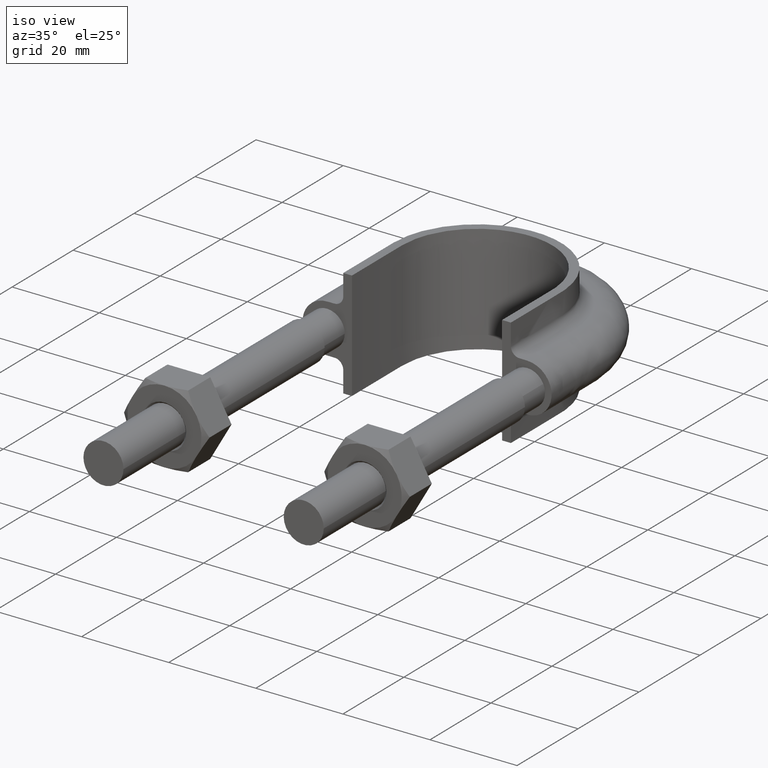
[diagram: clean part render]
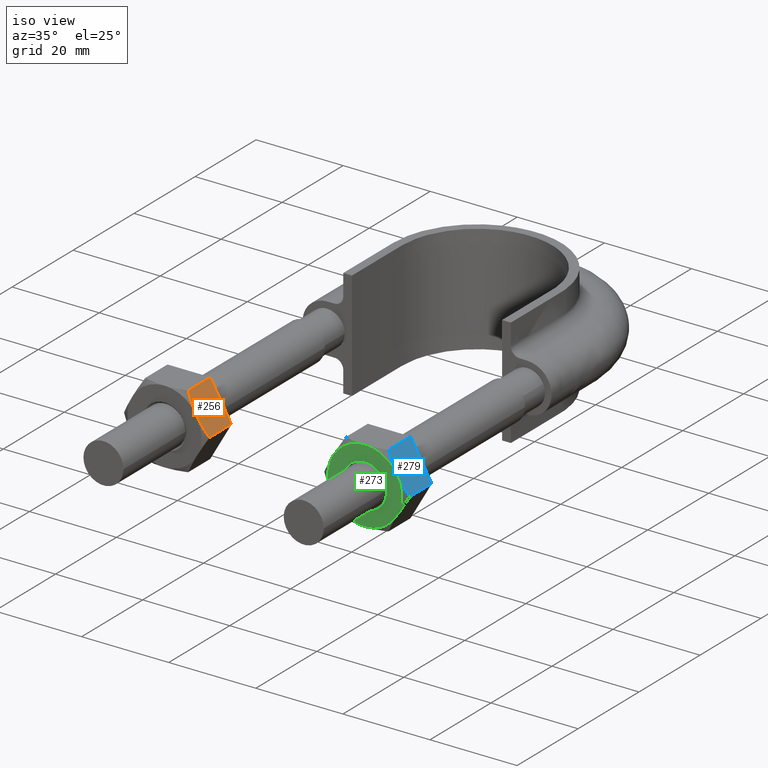
[diagram: same view with three faces highlighted in distinct colors, each labeled with its STEP entity id]
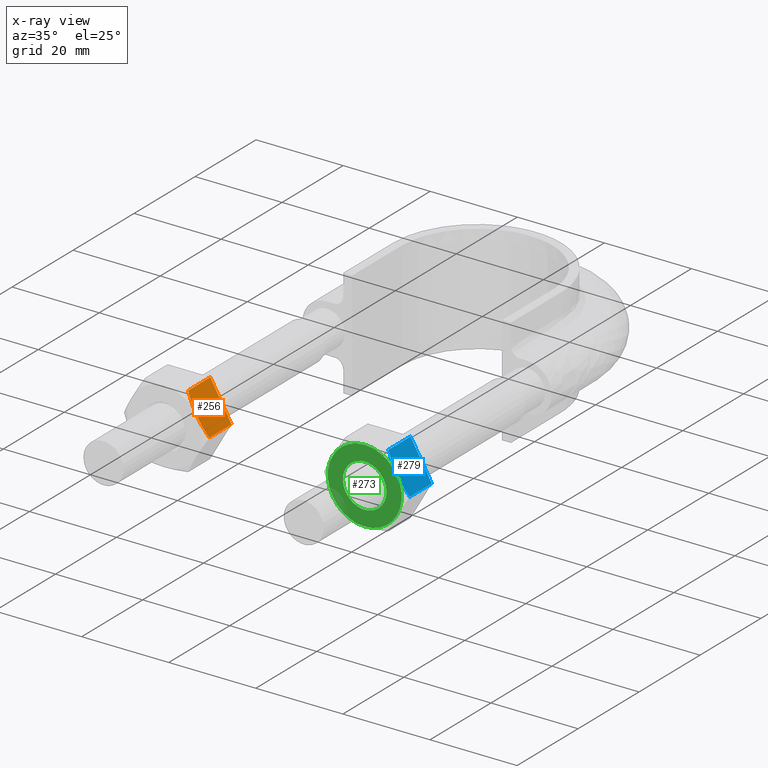
[diagram: x-ray of the same camera — body ghosted, the three highlighted faces saturated]
A machine part, iso view with three faces highlighted in distinct colors.
The next image is the same camera in x-ray (body ghosted, the three faces saturated) — at least one of them is partly hidden behind the body in this view.
Their STEP definitions:

[orange] entity #256 — the highlighted planar face has unit normal (-0.866, 0, -0.5).
#256 = ADVANCED_FACE( '', ( #382 ), #383, .F. );
#382 = FACE_OUTER_BOUND( '', #1379, .T. );
#383 = PLANE( '', #1380 );
#1379 = EDGE_LOOP( '', ( #1719, #1720, #1721, #1722, #1723 ) );
#1380 = AXIS2_PLACEMENT_3D( '', #1724, #1725, #1726 );
#1719 = ORIENTED_EDGE( '', *, *, #2085, .F. );
#1720 = ORIENTED_EDGE( '', *, *, #2052, .F. );
#1721 = ORIENTED_EDGE( '', *, *, #2086, .F. );
#1722 = ORIENTED_EDGE( '', *, *, #2069, .F. );
#1723 = ORIENTED_EDGE( '', *, *, #2080, .F. );
#1724 = CARTESIAN_POINT( '', ( -18.0925227118882, 28.0000000000000, 8.50000000000001 ) );
#1725 = DIRECTION( '', ( -0.866025403784439, 3.65183836637000E-016, -0.500000000000000 ) );
#1726 = DIRECTION( '', ( -2.44921270764475E-016, -1.00000000000000, -3.06151588455594E-016 ) );
#2052 = EDGE_CURVE( '', #2233, #2236, #2237, .T. );
#2069 = EDGE_CURVE( '', #2265, #2267, #2268, .T. );
#2080 = EDGE_CURVE( '', #2286, #2265, #2288, .T. );
#2085 = EDGE_CURVE( '', #2236, #2286, #2295, .T. );
#2086 = EDGE_CURVE( '', #2267, #2233, #2296, .F. );
#2233 = VERTEX_POINT( '', #2673 );
#2236 = VERTEX_POINT( '', #2676 );
#2237 = B_SPLINE_CURVE_WITH_KNOTS( '', 3, ( #2677, #2678, #2679, #2680, #2681, #2682 ), .UNSPECIFIED., .F., .F., ( 4, 2, 4 ), ( 0.0107224888714710, 0.0132032657403443, 0.0156840426092177 ), .UNSPECIFIED. );
#2265 = VERTEX_POINT( '', #2732 );
#2267 = VERTEX_POINT( '', #2734 );
#2268 = LINE( '', #2735, #2736 );
#2286 = VERTEX_POINT( '', #2758 );
#2288 = LINE( '', #2760, #2761 );
#2295 = B_SPLINE_CURVE_WITH_KNOTS( '', 3, ( #2781, #2782, #2783, #2784, #2785, #2786 ), .UNSPECIFIED., .F., .F., ( 4, 2, 4 ), ( 0.0156840426092177, 0.0181633795370703, 0.0206427164649230 ), .UNSPECIFIED. );
#2296 = LINE( '', #2787, #2788 );
#2673 = CARTESIAN_POINT( '', ( -13.2000343881808, 20.7505553499465, 0.0259616479013875 ) );
#2676 = CARTESIAN_POINT( '', ( -15.6387840678323, 20.0000000000000, 4.25000000000001 ) );
#2677 = CARTESIAN_POINT( '', ( -13.2000343881808, 20.7505553499465, 0.0259616479013872 ) );
#2678 = CARTESIAN_POINT( '', ( -13.5973471013617, 20.5222200930414, 0.714127453623761 ) );
#2679 = CARTESIAN_POINT( '', ( -13.9981827566703, 20.3336547117173, 1.40839517410335 ) );
#2680 = CARTESIAN_POINT( '', ( -14.8100934831092, 20.0721149177817, 2.81466580350569 ) );
#2681 = CARTESIAN_POINT( '', ( -15.2212446910265, 20.0000000000000, 3.52680058521175 ) );
#2682 = CARTESIAN_POINT( '', ( -15.6387840678323, 20.0000000000000, 4.25000000000001 ) );
#2732 = CARTESIAN_POINT( '', ( -18.0775337474837, 28.0000000000000, 8.47403835209863 ) );
#2734 = CARTESIAN_POINT( '', ( -13.2000343881808, 28.0000000000000, 0.0259616479013897 ) );
#2735 = CARTESIAN_POINT( '', ( -20.5387840678323, 28.0000000000000, 12.7370489570875 ) );
#2736 = VECTOR( '', #3119, 1000.00000000000 );
#2758 = CARTESIAN_POINT( '', ( -18.0775337474837, 20.7505553499465, 8.47403835209862 ) );
#2760 = CARTESIAN_POINT( '', ( -18.0775337474837, 28.0000000000000, 8.47403835209863 ) );
#2761 = VECTOR( '', #3142, 1000.00000000000 );
#2781 = CARTESIAN_POINT( '', ( -15.6387840678323, 20.0000000000000, 4.25000000000001 ) );
#2782 = CARTESIAN_POINT( '', ( -16.0560810882682, 20.0000000000000, 4.97277964124210 ) );
#2783 = CARTESIAN_POINT( '', ( -16.4683332044331, 20.0723104611263, 5.68682125196744 ) );
#2784 = CARTESIAN_POINT( '', ( -17.2801877793121, 20.3339943747733, 7.09299462401514 ) );
#2785 = CARTESIAN_POINT( '', ( -17.6807129739459, 20.5225028103093, 7.78672461083230 ) );
#2786 = CARTESIAN_POINT( '', ( -18.0775337474837, 20.7505553499465, 8.47403835209862 ) );
#2787 = CARTESIAN_POINT( '', ( -13.2000343881808, 28.0000000000000, 0.0259616479013897 ) );
#2788 = VECTOR( '', #3147, 1000.00000000000 );
#3119 = DIRECTION( '', ( 0.500000000000000, 1.42674417629266E-016, -0.866025403784439 ) );
#3142 = DIRECTION( '', ( 2.44921270764475E-016, 1.00000000000000, 3.06151588455594E-016 ) );
#3147 = DIRECTION( '', ( 2.44921270764475E-016, 1.00000000000000, 3.06151588455594E-016 ) );

[blue] entity #279 — the highlighted planar face has unit normal (-0.866, 0, -0.5).
#279 = ADVANCED_FACE( '', ( #433 ), #434, .F. );
#433 = FACE_OUTER_BOUND( '', #1430, .T. );
#434 = PLANE( '', #1431 );
#1430 = EDGE_LOOP( '', ( #1892, #1893, #1894, #1895, #1896 ) );
#1431 = AXIS2_PLACEMENT_3D( '', #1897, #1898, #1899 );
#1892 = ORIENTED_EDGE( '', *, *, #2137, .F. );
#1893 = ORIENTED_EDGE( '', *, *, #2104, .F. );
#1894 = ORIENTED_EDGE( '', *, *, #2138, .F. );
#1895 = ORIENTED_EDGE( '', *, *, #2121, .F. );
#1896 = ORIENTED_EDGE( '', *, *, #2132, .F. );
#1897 = CARTESIAN_POINT( '', ( 27.9074772881118, 28.0000000000000, 8.50000000000001 ) );
#1898 = DIRECTION( '', ( -0.866025403784439, 3.65183836637000E-016, -0.500000000000000 ) );
#1899 = DIRECTION( '', ( -2.44921270764475E-016, -1.00000000000000, -3.06151588455594E-016 ) );
#2104 = EDGE_CURVE( '', #2319, #2322, #2323, .T. );
#2121 = EDGE_CURVE( '', #2351, #2353, #2354, .T. );
#2132 = EDGE_CURVE( '', #2372, #2351, #2374, .T. );
#2137 = EDGE_CURVE( '', #2322, #2372, #2381, .T. );
#2138 = EDGE_CURVE( '', #2353, #2319, #2382, .F. );
#2319 = VERTEX_POINT( '', #2845 );
#2322 = VERTEX_POINT( '', #2848 );
#2323 = B_SPLINE_CURVE_WITH_KNOTS( '', 3, ( #2849, #2850, #2851, #2852, #2853, #2854 ), .UNSPECIFIED., .F., .F., ( 4, 2, 4 ), ( 0.0107224888714710, 0.0132032657403443, 0.0156840426092177 ), .UNSPECIFIED. );
#2351 = VERTEX_POINT( '', #2904 );
#2353 = VERTEX_POINT( '', #2906 );
#2354 = LINE( '', #2907, #2908 );
#2372 = VERTEX_POINT( '', #2930 );
#2374 = LINE( '', #2932, #2933 );
#2381 = B_SPLINE_CURVE_WITH_KNOTS( '', 3, ( #2953, #2954, #2955, #2956, #2957, #2958 ), .UNSPECIFIED., .F., .F., ( 4, 2, 4 ), ( 0.0156840426092177, 0.0181633795370703, 0.0206427164649230 ), .UNSPECIFIED. );
#2382 = LINE( '', #2959, #2960 );
#2845 = CARTESIAN_POINT( '', ( 32.7999656118192, 20.7505553499465, 0.0259616479013875 ) );
#2848 = CARTESIAN_POINT( '', ( 30.3612159321677, 20.0000000000000, 4.25000000000001 ) );
#2849 = CARTESIAN_POINT( '', ( 32.7999656118192, 20.7505553499465, 0.0259616479013871 ) );
#2850 = CARTESIAN_POINT( '', ( 32.4026528986383, 20.5222200930414, 0.714127453623761 ) );
#2851 = CARTESIAN_POINT( '', ( 32.0018172433297, 20.3336547117173, 1.40839517410335 ) );
#2852 = CARTESIAN_POINT( '', ( 31.1899065168908, 20.0721149177817, 2.81466580350569 ) );
#2853 = CARTESIAN_POINT( '', ( 30.7787553089735, 20.0000000000000, 3.52680058521175 ) );
#2854 = CARTESIAN_POINT( '', ( 30.3612159321677, 20.0000000000000, 4.25000000000001 ) );
#2904 = CARTESIAN_POINT( '', ( 27.9224662525163, 28.0000000000000, 8.47403835209863 ) );
#2906 = CARTESIAN_POINT( '', ( 32.7999656118192, 28.0000000000000, 0.0259616479013897 ) );
#2907 = CARTESIAN_POINT( '', ( 25.4612159321677, 28.0000000000000, 12.7370489570875 ) );
#2908 = VECTOR( '', #3203, 1000.00000000000 );
#2930 = CARTESIAN_POINT( '', ( 27.9224662525163, 20.7505553499465, 8.47403835209862 ) );
#2932 = CARTESIAN_POINT( '', ( 27.9224662525163, 28.0000000000000, 8.47403835209863 ) );
#2933 = VECTOR( '', #3226, 1000.00000000000 );
#2953 = CARTESIAN_POINT( '', ( 30.3612159321677, 20.0000000000000, 4.25000000000001 ) );
#2954 = CARTESIAN_POINT( '', ( 29.9439189117318, 20.0000000000000, 4.97277964124210 ) );
#2955 = CARTESIAN_POINT( '', ( 29.5316667955670, 20.0723104611263, 5.68682125196744 ) );
#2956 = CARTESIAN_POINT( '', ( 28.7198122206880, 20.3339943747733, 7.09299462401514 ) );
#2957 = CARTESIAN_POINT( '', ( 28.3192870260541, 20.5225028103093, 7.78672461083230 ) );
#2958 = CARTESIAN_POINT( '', ( 27.9224662525163, 20.7505553499465, 8.47403835209862 ) );
#2959 = CARTESIAN_POINT( '', ( 32.7999656118192, 28.0000000000000, 0.0259616479013897 ) );
#2960 = VECTOR( '', #3231, 1000.00000000000 );
#3203 = DIRECTION( '', ( 0.500000000000000, 1.42674417629266E-016, -0.866025403784439 ) );
#3226 = DIRECTION( '', ( 2.44921270764475E-016, 1.00000000000000, 3.06151588455594E-016 ) );
#3231 = DIRECTION( '', ( 2.44921270764475E-016, 1.00000000000000, 3.06151588455594E-016 ) );

[green] entity #273 — the highlighted planar face has unit normal (0, 1, 0).
#273 = ADVANCED_FACE( '', ( #419, #420 ), #421, .F. );
#419 = FACE_OUTER_BOUND( '', #1416, .T. );
#420 = FACE_BOUND( '', #1417, .T. );
#421 = PLANE( '', #1418 );
#1416 = EDGE_LOOP( '', ( #1837, #1838, #1839, #1840, #1841, #1842 ) );
#1417 = EDGE_LOOP( '', ( #1843 ) );
#1418 = AXIS2_PLACEMENT_3D( '', #1844, #1845, #1846 );
#1837 = ORIENTED_EDGE( '', *, *, #2107, .F. );
#1838 = ORIENTED_EDGE( '', *, *, #2108, .F. );
#1839 = ORIENTED_EDGE( '', *, *, #2109, .F. );
#1840 = ORIENTED_EDGE( '', *, *, #2110, .F. );
#1841 = ORIENTED_EDGE( '', *, *, #2105, .F. );
#1842 = ORIENTED_EDGE( '', *, *, #2111, .F. );
#1843 = ORIENTED_EDGE( '', *, *, #2112, .T. );
#1844 = CARTESIAN_POINT( '', ( 23.0000000000000, 20.0000000000000, 6.58164928807326E-015 ) );
#1845 = DIRECTION( '', ( 2.44921270764475E-016, 1.00000000000000, 3.06151588455594E-016 ) );
#1846 = DIRECTION( '', ( -0.866025403784439, 3.65183836637000E-016, -0.500000000000000 ) );
#2105 = EDGE_CURVE( '', #2322, #2324, #2325, .T. );
#2107 = EDGE_CURVE( '', #2327, #2328, #2329, .T. );
#2108 = EDGE_CURVE( '', #2330, #2327, #2331, .T. );
#2109 = EDGE_CURVE( '', #2332, #2330, #2333, .T. );
#2110 = EDGE_CURVE( '', #2324, #2332, #2334, .T. );
#2111 = EDGE_CURVE( '', #2328, #2322, #2335, .T. );
#2112 = EDGE_CURVE( '', #2336, #2336, #2337, .T. );
#2322 = VERTEX_POINT( '', #2848 );
#2324 = VERTEX_POINT( '', #2855 );
#2325 = CIRCLE( '', #2856, 8.50000000000000 );
#2327 = VERTEX_POINT( '', #2865 );
#2328 = VERTEX_POINT( '', #2866 );
#2329 = CIRCLE( '', #2867, 8.50000000000000 );
#2330 = VERTEX_POINT( '', #2868 );
#2331 = CIRCLE( '', #2869, 8.50000000000000 );
#2332 = VERTEX_POINT( '', #2870 );
#2333 = CIRCLE( '', #2871, 8.50000000000000 );
#2334 = CIRCLE( '', #2872, 8.50000000000000 );
#2335 = CIRCLE( '', #2873, 8.50000000000000 );
#2336 = VERTEX_POINT( '', #2874 );
#2337 = CIRCLE( '', #2875, 5.00000000000000 );
#2848 = CARTESIAN_POINT( '', ( 30.3612159321677, 20.0000000000000, 4.25000000000001 ) );
#2855 = CARTESIAN_POINT( '', ( 30.3612159321677, 20.0000000000000, -4.24999999999999 ) );
#2856 = AXIS2_PLACEMENT_3D( '', #3170, #3171, #3172 );
#2865 = CARTESIAN_POINT( '', ( 15.6387840678323, 20.0000000000000, 4.25000000000001 ) );
#2866 = CARTESIAN_POINT( '', ( 23.0000000000000, 20.0000000000000, 8.50000000000001 ) );
#2867 = AXIS2_PLACEMENT_3D( '', #3173, #3174, #3175 );
#2868 = CARTESIAN_POINT( '', ( 15.6387840678323, 20.0000000000000, -4.24999999999999 ) );
#2869 = AXIS2_PLACEMENT_3D( '', #3176, #3177, #3178 );
#2870 = CARTESIAN_POINT( '', ( 23.0000000000000, 20.0000000000000, -8.49999999999999 ) );
#2871 = AXIS2_PLACEMENT_3D( '', #3179, #3180, #3181 );
#2872 = AXIS2_PLACEMENT_3D( '', #3182, #3183, #3184 );
#2873 = AXIS2_PLACEMENT_3D( '', #3185, #3186, #3187 );
#2874 = CARTESIAN_POINT( '', ( 18.6698729810778, 20.0000000000000, -2.49999999999999 ) );
#2875 = AXIS2_PLACEMENT_3D( '', #3188, #3189, #3190 );
#3170 = CARTESIAN_POINT( '', ( 23.0000000000000, 20.0000000000000, 6.58164928807326E-015 ) );
#3171 = DIRECTION( '', ( 2.44921270764475E-016, 1.00000000000000, 3.06151588455594E-016 ) );
#3172 = DIRECTION( '', ( -0.866025403784439, 3.65183836637000E-016, -0.500000000000000 ) );
#3173 = CARTESIAN_POINT( '', ( 23.0000000000000, 20.0000000000000, 6.58164928807326E-015 ) );
#3174 = DIRECTION( '', ( 2.44921270764475E-016, 1.00000000000000, 3.06151588455594E-016 ) );
#3175 = DIRECTION( '', ( -0.866025403784439, 3.65183836637000E-016, -0.500000000000000 ) );
#3176 = CARTESIAN_POINT( '', ( 23.0000000000000, 20.0000000000000, 6.58164928807326E-015 ) );
#3177 = DIRECTION( '', ( 2.44921270764475E-016, 1.00000000000000, 3.06151588455594E-016 ) );
#3178 = DIRECTION( '', ( -0.866025403784439, 3.65183836637000E-016, -0.500000000000000 ) );
#3179 = CARTESIAN_POINT( '', ( 23.0000000000000, 20.0000000000000, 6.58164928807326E-015 ) );
#3180 = DIRECTION( '', ( 2.44921270764475E-016, 1.00000000000000, 3.06151588455594E-016 ) );
#3181 = DIRECTION( '', ( -0.866025403784439, 3.65183836637000E-016, -0.500000000000000 ) );
#3182 = CARTESIAN_POINT( '', ( 23.0000000000000, 20.0000000000000, 6.58164928807326E-015 ) );
#3183 = DIRECTION( '', ( 2.44921270764475E-016, 1.00000000000000, 3.06151588455594E-016 ) );
#3184 = DIRECTION( '', ( -0.866025403784439, 3.65183836637000E-016, -0.500000000000000 ) );
#3185 = CARTESIAN_POINT( '', ( 23.0000000000000, 20.0000000000000, 6.58164928807326E-015 ) );
#3186 = DIRECTION( '', ( 2.44921270764475E-016, 1.00000000000000, 3.06151588455594E-016 ) );
#3187 = DIRECTION( '', ( -0.866025403784439, 3.65183836637000E-016, -0.500000000000000 ) );
#3188 = CARTESIAN_POINT( '', ( 23.0000000000000, 20.0000000000000, 6.58164928807326E-015 ) );
#3189 = DIRECTION( '', ( 2.44921270764475E-016, 1.00000000000000, 3.06151588455594E-016 ) );
#3190 = DIRECTION( '', ( -0.866025403784439, 3.65183836637000E-016, -0.500000000000000 ) );